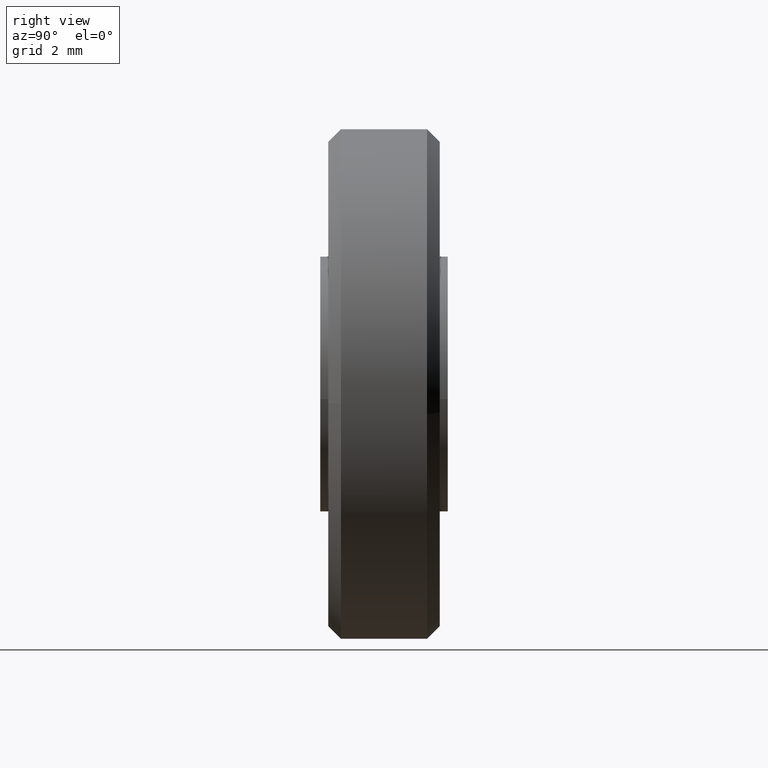
[diagram: clean part render]
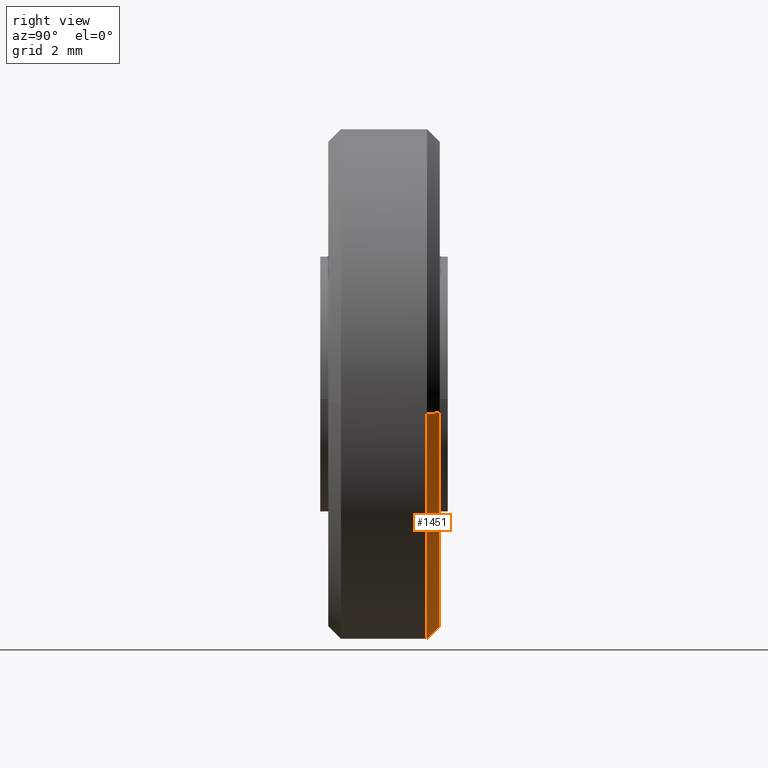
[diagram: same view with one face highlighted and labeled with its STEP entity id]
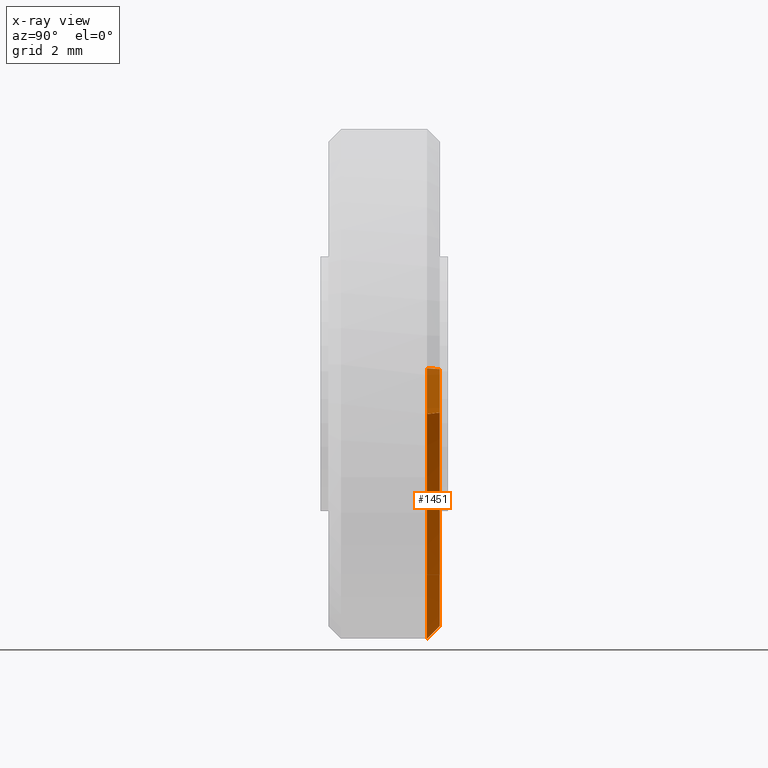
[diagram: x-ray of the same camera — body ghosted, the highlighted face saturated]
A machine part, right view. The second image highlights one B-rep face of the part: STEP entity #1451.
The next image is the same camera in x-ray: the body ghosted, the highlighted face saturated — about 17% of this face is hidden behind the body in this view.
In plain terms, the highlighted face is a freeform B-spline surface patch.
Its self-contained STEP definition (entity closure, byte-faithful):
#1217=CARTESIAN_POINT('',(-7.985078387375440,3.349999999998263,0.488388316285977));
#1218=VERTEX_POINT('',#1217);
#1270=CARTESIAN_POINT('',(7.944076210909340,3.349999999999953,-0.944273877254476));
#1271=VERTEX_POINT('',#1270);
#1292=CARTESIAN_POINT('',(0.0,3.350000000000000,-8.0));
#1293=VERTEX_POINT('',#1292);
#1294=CARTESIAN_POINT('',(-7.985078387375441,3.349999999998263,0.488388316285977));
#1295=CARTESIAN_POINT('',(-8.0,3.350000000000000,0.244422106402877));
#1296=CARTESIAN_POINT('',(-8.0,3.350000000000000,-1.224606E-016));
#1297=CARTESIAN_POINT('',(-8.0,3.350000000000000,-8.0));
#1298=CARTESIAN_POINT('',(0.0,3.350000000000000,-8.0));
#1306=(BOUNDED_CURVE()B_SPLINE_CURVE(2,(#1294,#1295,#1296,#1297,#1298),.UNSPECIFIED.,.F.,.U.)B_SPLINE_CURVE_WITH_KNOTS((3,2,3),(0.739332962241358,0.750000000000000,1.0),.UNSPECIFIED.)CURVE()GEOMETRIC_REPRESENTATION_ITEM()RATIONAL_B_SPLINE_CURVE((0.976072041671893,0.987502787902667,1.0,0.707106781186548,1.0))REPRESENTATION_ITEM(''));
#1307=EDGE_CURVE('',#1218,#1293,#1306,.T.);
#1309=CARTESIAN_POINT('',(0.0,3.350000000000000,-8.0));
#1310=CARTESIAN_POINT('',(7.105396207610216,3.350000000000001,-8.0));
#1311=CARTESIAN_POINT('',(7.944076210909340,3.349999999999953,-0.944273877254476));
#1319=(BOUNDED_CURVE()B_SPLINE_CURVE(2,(#1309,#1310,#1311),.UNSPECIFIED.,.F.,.U.)B_SPLINE_CURVE_WITH_KNOTS((3,3),(0.0,0.229562473515627),.UNSPECIFIED.)CURVE()GEOMETRIC_REPRESENTATION_ITEM()RATIONAL_B_SPLINE_CURVE((1.0,0.731050832852920,0.956026754187852))REPRESENTATION_ITEM(''));
#1320=EDGE_CURVE('',#1293,#1271,#1319,.T.);
#1348=CARTESIAN_POINT('',(7.546872400363963,3.749999999998501,-0.897060183403245));
#1349=VERTEX_POINT('',#1348);
#1350=CARTESIAN_POINT('',(7.546872400363963,3.749999999998501,-0.897060183403245));
#1351=CARTESIAN_POINT('',(7.944076210909340,3.349999999999953,-0.944273877254476));
#1352=QUASI_UNIFORM_CURVE('',1,(#1350,#1351),.UNSPECIFIED.,.F.,.U.);
#1353=EDGE_CURVE('',#1349,#1271,#1352,.T.);
#1372=CARTESIAN_POINT('',(-7.585824468006442,3.749999999999528,0.463968900468509));
#1373=VERTEX_POINT('',#1372);
#1387=CARTESIAN_POINT('',(-7.585824468006442,3.749999999999528,0.463968900468509));
#1388=CARTESIAN_POINT('',(-7.985078387375440,3.349999999998263,0.488388316285977));
#1389=QUASI_UNIFORM_CURVE('',1,(#1387,#1388),.UNSPECIFIED.,.F.,.U.);
#1390=EDGE_CURVE('',#1373,#1218,#1389,.T.);
#1397=CARTESIAN_POINT('',(-7.575843120021968,3.760000000000001,0.463358415069564));
#1398=CARTESIAN_POINT('',(-8.039201535091532,3.760000000000002,-7.112484704952404));
#1399=CARTESIAN_POINT('',(-0.463358415069564,3.760000000000001,-7.575843120021968));
#1400=CARTESIAN_POINT('',(6.690915095471810,3.760000000000001,-8.013417233199883));
#1401=CARTESIAN_POINT('',(7.536942305100228,3.760000000000000,-0.895879841044797));
#1402=CARTESIAN_POINT('',(-7.995309269058778,3.339750000000000,0.489014063809089));
#1403=CARTESIAN_POINT('',(-8.484323332867866,3.339750000000000,-7.506295205249689));
#1404=CARTESIAN_POINT('',(-0.489014063809089,3.339750000000000,-7.995309269058778));
#1405=CARTESIAN_POINT('',(7.061383747497131,3.339750000000000,-8.457111382376748));
#1406=CARTESIAN_POINT('',(7.954254558554578,3.339750000000000,-0.945483728159302));
#1414=(BOUNDED_SURFACE()B_SPLINE_SURFACE(2,1,((#1397,#1402),(#1398,#1403),(#1399,#1404),(#1400,#1405),(#1401,#1406)),.UNSPECIFIED.,.F.,.F.,.U.)B_SPLINE_SURFACE_WITH_KNOTS((3,2,3),(2,2),(0.0,13.271816751996370,26.012760833912889),(0.0,1.0),.UNSPECIFIED.)GEOMETRIC_REPRESENTATION_ITEM()RATIONAL_B_SPLINE_SURFACE(((1.0,1.0),(0.707106781186548,0.707106781186548),(1.0,1.0),(0.718822509939086,0.718822509939086),(0.977505800795127,0.977505800795127)))REPRESENTATION_ITEM('')SURFACE());
#1415=ORIENTED_EDGE('',*,*,#1320,.F.);
#1416=ORIENTED_EDGE('',*,*,#1307,.F.);
#1417=ORIENTED_EDGE('',*,*,#1390,.F.);
#1418=CARTESIAN_POINT('',(0.0,3.750000000000000,-7.600000000000000));
#1419=VERTEX_POINT('',#1418);
#1420=CARTESIAN_POINT('',(-7.585824468006442,3.749999999999528,0.463968900468509));
#1421=CARTESIAN_POINT('',(-7.600000000000000,3.750000000000000,0.232201001072853));
#1422=CARTESIAN_POINT('',(-7.600000000000000,3.750000000000000,-1.224606E-016));
#1423=CARTESIAN_POINT('',(-7.600000000000000,3.750000000000000,-7.600000000000000));
#1424=CARTESIAN_POINT('',(0.0,3.750000000000000,-7.600000000000000));
#1432=(BOUNDED_CURVE()B_SPLINE_CURVE(2,(#1420,#1421,#1422,#1423,#1424),.UNSPECIFIED.,.F.,.U.)B_SPLINE_CURVE_WITH_KNOTS((3,2,3),(0.739332962241806,0.750000000000000,1.0),.UNSPECIFIED.)CURVE()GEOMETRIC_REPRESENTATION_ITEM()RATIONAL_B_SPLINE_CURVE((0.976072041672854,0.987502787903192,1.0,0.707106781186547,1.0))REPRESENTATION_ITEM(''));
#1433=EDGE_CURVE('',#1373,#1419,#1432,.T.);
#1434=ORIENTED_EDGE('',*,*,#1433,.T.);
#1435=CARTESIAN_POINT('',(0.0,3.750000000000000,-7.600000000000000));
#1436=CARTESIAN_POINT('',(6.750126397209313,3.750000000000000,-7.600000000000000));
#1437=CARTESIAN_POINT('',(7.546872400363964,3.749999999998501,-0.897060183403245));
#1445=(BOUNDED_CURVE()B_SPLINE_CURVE(2,(#1435,#1436,#1437),.UNSPECIFIED.,.F.,.U.)B_SPLINE_CURVE_WITH_KNOTS((3,3),(0.0,0.229562473515120),.UNSPECIFIED.)CURVE()GEOMETRIC_REPRESENTATION_ITEM()RATIONAL_B_SPLINE_CURVE((1.0,0.731050832853514,0.956026754186859))REPRESENTATION_ITEM(''));
#1446=EDGE_CURVE('',#1419,#1349,#1445,.T.);
#1447=ORIENTED_EDGE('',*,*,#1446,.T.);
#1448=ORIENTED_EDGE('',*,*,#1353,.T.);
#1449=EDGE_LOOP('',(#1415,#1416,#1417,#1434,#1447,#1448));
#1450=FACE_OUTER_BOUND('',#1449,.T.);
#1451=ADVANCED_FACE('',(#1450),#1414,.T.);